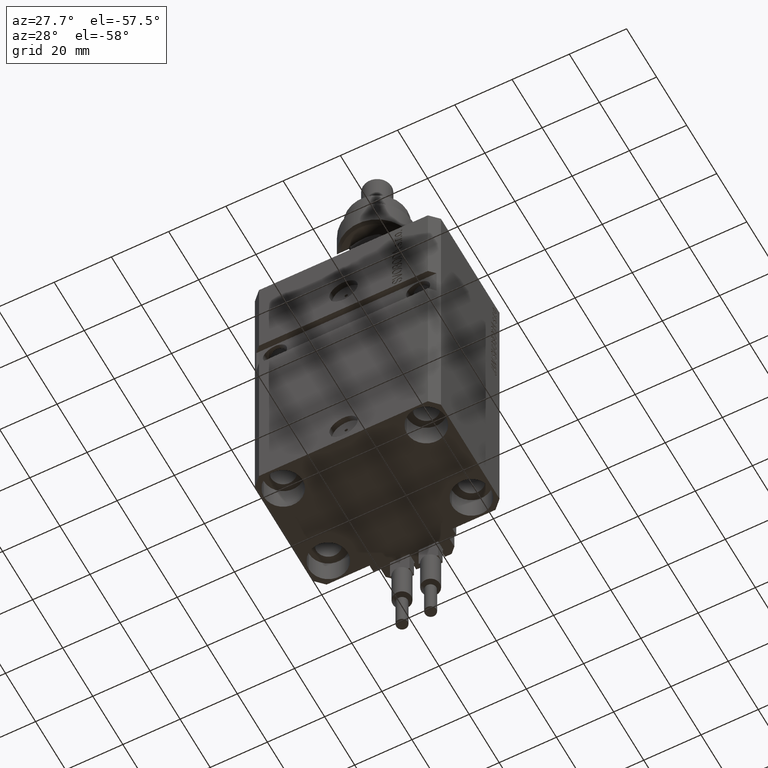
[diagram: clean part render]
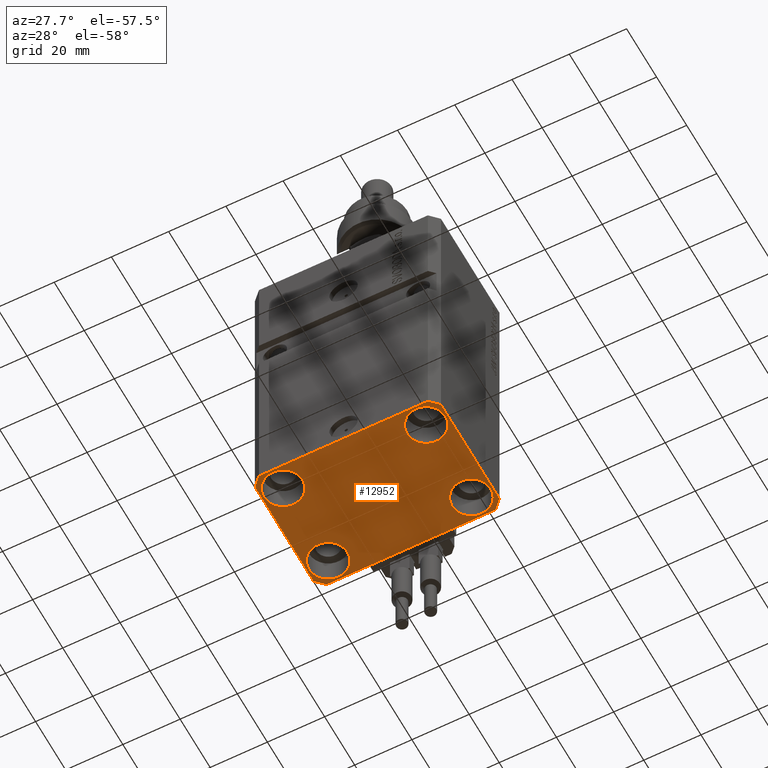
[diagram: same view with one face highlighted and labeled with its STEP entity id]
A machine part, auxiliary view. The second image highlights one B-rep face of the part: STEP entity #12952.
In plain terms, the highlighted planar face has unit normal (0, 0, 1).
Its self-contained STEP definition (entity closure, byte-faithful):
#37 = CIRCLE ( 'NONE', #19725, 6.749999999958452790 ) ;
#80 = VERTEX_POINT ( 'NONE', #34087 ) ;
#184 = DIRECTION ( 'NONE',  ( 1.000000000000000000, 0.000000000000000000, 0.000000000000000000 ) ) ;
#570 = CARTESIAN_POINT ( 'NONE',  ( 18.25000000004154543, 15.00000000000000888, -107.0000000000000000 ) ) ;
#759 = AXIS2_PLACEMENT_3D ( 'NONE', #5751, #48397, #16548 ) ;
#971 = ORIENTED_EDGE ( 'NONE', *, *, #12123, .F. ) ;
#1001 = VERTEX_POINT ( 'NONE', #32101 ) ;
#1067 = VERTEX_POINT ( 'NONE', #30247 ) ;
#1440 = ORIENTED_EDGE ( 'NONE', *, *, #33199, .F. ) ;
#1677 = VERTEX_POINT ( 'NONE', #50659 ) ;
#2952 = CARTESIAN_POINT ( 'NONE',  ( -32.49999999999650413, 19.49999999999949907, -107.0000000000000000 ) ) ;
#3204 = ORIENTED_EDGE ( 'NONE', *, *, #39499, .T. ) ;
#3311 = CARTESIAN_POINT ( 'NONE',  ( 29.49999999999650413, -22.49999999999949196, -107.0000000000000000 ) ) ;
#3581 = CARTESIAN_POINT ( 'NONE',  ( -25.00000000000000355, -15.00000000000000000, -107.0000000000000000 ) ) ;
#4820 = ORIENTED_EDGE ( 'NONE', *, *, #18905, .F. ) ;
#5167 = LINE ( 'NONE', #13141, #14283 ) ;
#5708 = DIRECTION ( 'NONE',  ( 1.000000000000000000, 0.000000000000000000, 0.000000000000000000 ) ) ;
#5751 = CARTESIAN_POINT ( 'NONE',  ( 0.000000000000000000, 0.000000000000000000, -107.0000000000000000 ) ) ;
#7946 = VERTEX_POINT ( 'NONE', #47980 ) ;
#8746 = CARTESIAN_POINT ( 'NONE',  ( -25.00000000000000355, 15.00000000000000000, -107.0000000000000000 ) ) ;
#9396 = CARTESIAN_POINT ( 'NONE',  ( -32.49999999999650413, 19.49999999999949907, -107.0000000000000000 ) ) ;
#9482 = AXIS2_PLACEMENT_3D ( 'NONE', #11554, #31360, #12073 ) ;
#9933 = VERTEX_POINT ( 'NONE', #26378 ) ;
#9961 = CIRCLE ( 'NONE', #28879, 6.750000000041541881 ) ;
#10611 = CARTESIAN_POINT ( 'NONE',  ( 32.49999999999702993, 19.49999999999945999, -107.0000000000000000 ) ) ;
#10756 = DIRECTION ( 'NONE',  ( 0.7071067811865483499, 0.7071067811865466846, 0.000000000000000000 ) ) ;
#11211 = VERTEX_POINT ( 'NONE', #20127 ) ;
#11554 = CARTESIAN_POINT ( 'NONE',  ( 25.00000000000000355, -15.00000000000000000, -107.0000000000000000 ) ) ;
#11930 = AXIS2_PLACEMENT_3D ( 'NONE', #27879, #35836, #16547 ) ;
#12073 = DIRECTION ( 'NONE',  ( 1.000000000000000000, 0.000000000000000000, 0.000000000000000000 ) ) ;
#12093 = DIRECTION ( 'NONE',  ( 1.000000000000000000, 0.000000000000000000, 0.000000000000000000 ) ) ;
#12123 = EDGE_CURVE ( 'NONE', #7946, #1677, #24641, .T. ) ;
#12952 = ADVANCED_FACE ( 'NONE', ( #39940, #36087, #21169, #28379, #32234 ), #28125, .F. ) ;
#12983 = EDGE_LOOP ( 'NONE', ( #28687, #47561 ) ) ;
#13141 = CARTESIAN_POINT ( 'NONE',  ( -29.49999999999650413, -22.49999999999949907, -107.0000000000000000 ) ) ;
#13417 = AXIS2_PLACEMENT_3D ( 'NONE', #8746, #28551, #12093 ) ;
#13888 = ORIENTED_EDGE ( 'NONE', *, *, #29912, .T. ) ;
#13943 = EDGE_CURVE ( 'NONE', #80, #14635, #16556, .T. ) ;
#14212 = VERTEX_POINT ( 'NONE', #38603 ) ;
#14283 = VECTOR ( 'NONE', #20598, 1000.000000000000000 ) ;
#14635 = VERTEX_POINT ( 'NONE', #9396 ) ;
#15644 = ORIENTED_EDGE ( 'NONE', *, *, #20658, .F. ) ;
#15950 = DIRECTION ( 'NONE',  ( -0.7071067811865352493, 0.7071067811865597852, 0.000000000000000000 ) ) ;
#16547 = DIRECTION ( 'NONE',  ( 1.000000000000000000, 0.000000000000000000, 0.000000000000000000 ) ) ;
#16548 = DIRECTION ( 'NONE',  ( 1.000000000000000000, 0.000000000000000000, -0.000000000000000000 ) ) ;
#16556 = LINE ( 'NONE', #25047, #18852 ) ;
#18138 = EDGE_LOOP ( 'NONE', ( #3204, #32679 ) ) ;
#18852 = VECTOR ( 'NONE', #29162, 1000.000000000000114 ) ;
#18905 = EDGE_CURVE ( 'NONE', #14635, #7946, #38412, .T. ) ;
#19725 = AXIS2_PLACEMENT_3D ( 'NONE', #32288, #47940, #184 ) ;
#20127 = CARTESIAN_POINT ( 'NONE',  ( 18.25000000002253842, -15.00000000000000000, -107.0000000000000000 ) ) ;
#20598 = DIRECTION ( 'NONE',  ( 1.000000000000000000, 1.176083712526788232E-16, 0.000000000000000000 ) ) ;
#20658 = EDGE_CURVE ( 'NONE', #1001, #9933, #34411, .T. ) ;
#21169 = FACE_BOUND ( 'NONE', #12983, .T. ) ;
#21178 = EDGE_CURVE ( 'NONE', #50551, #39740, #37, .T. ) ;
#22089 = EDGE_CURVE ( 'NONE', #39740, #50551, #42713, .T. ) ;
#23360 = ORIENTED_EDGE ( 'NONE', *, *, #46494, .F. ) ;
#23821 = CARTESIAN_POINT ( 'NONE',  ( 24.99999999999999645, 15.00000000000000888, -107.0000000000000000 ) ) ;
#24089 = CIRCLE ( 'NONE', #13417, 6.750000000022533087 ) ;
#24198 = EDGE_CURVE ( 'NONE', #41298, #43721, #9961, .T. ) ;
#24641 = LINE ( 'NONE', #28508, #39310 ) ;
#24810 = EDGE_LOOP ( 'NONE', ( #37677, #32864, #23360, #15644, #1440, #971, #4820, #35441 ) ) ;
#24819 = VERTEX_POINT ( 'NONE', #10611 ) ;
#25047 = CARTESIAN_POINT ( 'NONE',  ( -29.49999999999650413, 22.49999999999949907, -107.0000000000000000 ) ) ;
#25144 = VERTEX_POINT ( 'NONE', #31892 ) ;
#25411 = ORIENTED_EDGE ( 'NONE', *, *, #24198, .T. ) ;
#25977 = LINE ( 'NONE', #33435, #44766 ) ;
#26378 = CARTESIAN_POINT ( 'NONE',  ( 32.49999999999651124, -19.49999999999949196, -107.0000000000000000 ) ) ;
#26480 = DIRECTION ( 'NONE',  ( 1.000000000000000000, 0.000000000000000000, 0.000000000000000000 ) ) ;
#27153 = VERTEX_POINT ( 'NONE', #41726 ) ;
#27786 = CARTESIAN_POINT ( 'NONE',  ( 32.49999999999702993, 19.49999999999945999, -107.0000000000000000 ) ) ;
#27879 = CARTESIAN_POINT ( 'NONE',  ( 25.00000000000000355, -15.00000000000000000, -107.0000000000000000 ) ) ;
#27940 = CARTESIAN_POINT ( 'NONE',  ( -31.75000000004154899, -15.00000000000000000, -107.0000000000000000 ) ) ;
#28125 = PLANE ( 'NONE',  #759 ) ;
#28379 = FACE_BOUND ( 'NONE', #42797, .T. ) ;
#28508 = CARTESIAN_POINT ( 'NONE',  ( -32.49999999999650413, -19.49999999999949907, -107.0000000000000000 ) ) ;
#28551 = DIRECTION ( 'NONE',  ( -0.000000000000000000, -0.000000000000000000, 1.000000000000000000 ) ) ;
#28687 = ORIENTED_EDGE ( 'NONE', *, *, #22089, .T. ) ;
#28805 = CARTESIAN_POINT ( 'NONE',  ( -18.24999999995845812, -15.00000000000000000, -107.0000000000000000 ) ) ;
#28879 = AXIS2_PLACEMENT_3D ( 'NONE', #3581, #30086, #26480 ) ;
#29162 = DIRECTION ( 'NONE',  ( -0.7071067811865474617, -0.7071067811865474617, 0.000000000000000000 ) ) ;
#29269 = DIRECTION ( 'NONE',  ( 0.7071067811865474617, -0.7071067811865474617, 0.000000000000000000 ) ) ;
#29912 = EDGE_CURVE ( 'NONE', #27153, #14212, #41240, .T. ) ;
#30086 = DIRECTION ( 'NONE',  ( -0.000000000000000000, -0.000000000000000000, 1.000000000000000000 ) ) ;
#30247 = CARTESIAN_POINT ( 'NONE',  ( 29.49999999999707967, 22.49999999999951328, -107.0000000000000000 ) ) ;
#30819 = CIRCLE ( 'NONE', #11930, 6.749999999977465137 ) ;
#31177 = EDGE_CURVE ( 'NONE', #14212, #27153, #24089, .T. ) ;
#31231 = EDGE_CURVE ( 'NONE', #24819, #1067, #48055, .T. ) ;
#31360 = DIRECTION ( 'NONE',  ( -0.000000000000000000, -0.000000000000000000, 1.000000000000000000 ) ) ;
#31892 = CARTESIAN_POINT ( 'NONE',  ( 31.74999999997746869, -15.00000000000000000, -107.0000000000000000 ) ) ;
#32101 = CARTESIAN_POINT ( 'NONE',  ( 29.49999999999650413, -22.49999999999949196, -107.0000000000000000 ) ) ;
#32234 = FACE_OUTER_BOUND ( 'NONE', #24810, .T. ) ;
#32288 = CARTESIAN_POINT ( 'NONE',  ( 24.99999999999999645, 15.00000000000000888, -107.0000000000000000 ) ) ;
#32679 = ORIENTED_EDGE ( 'NONE', *, *, #36340, .T. ) ;
#32864 = ORIENTED_EDGE ( 'NONE', *, *, #31231, .F. ) ;
#32889 = DIRECTION ( 'NONE',  ( 1.334402673828349134E-14, 1.000000000000000000, 0.000000000000000000 ) ) ;
#33199 = EDGE_CURVE ( 'NONE', #1677, #1001, #5167, .T. ) ;
#33215 = DIRECTION ( 'NONE',  ( -0.000000000000000000, -0.000000000000000000, 1.000000000000000000 ) ) ;
#33289 = EDGE_LOOP ( 'NONE', ( #39355, #25411 ) ) ;
#33435 = CARTESIAN_POINT ( 'NONE',  ( 29.49999999999707967, 22.49999999999951328, -107.0000000000000000 ) ) ;
#34087 = CARTESIAN_POINT ( 'NONE',  ( -29.49999999999650413, 22.49999999999949907, -107.0000000000000000 ) ) ;
#34303 = AXIS2_PLACEMENT_3D ( 'NONE', #37302, #44244, #5708 ) ;
#34411 = LINE ( 'NONE', #3311, #46458 ) ;
#34542 = AXIS2_PLACEMENT_3D ( 'NONE', #23821, #36657, #47953 ) ;
#35441 = ORIENTED_EDGE ( 'NONE', *, *, #13943, .F. ) ;
#35836 = DIRECTION ( 'NONE',  ( -0.000000000000000000, -0.000000000000000000, 1.000000000000000000 ) ) ;
#36087 = FACE_BOUND ( 'NONE', #18138, .T. ) ;
#36340 = EDGE_CURVE ( 'NONE', #25144, #11211, #48065, .T. ) ;
#36344 = AXIS2_PLACEMENT_3D ( 'NONE', #49125, #33215, #40657 ) ;
#36657 = DIRECTION ( 'NONE',  ( -0.000000000000000000, -0.000000000000000000, 1.000000000000000000 ) ) ;
#37302 = CARTESIAN_POINT ( 'NONE',  ( -25.00000000000000355, -15.00000000000000000, -107.0000000000000000 ) ) ;
#37677 = ORIENTED_EDGE ( 'NONE', *, *, #39055, .F. ) ;
#38412 = LINE ( 'NONE', #2952, #45156 ) ;
#38440 = VECTOR ( 'NONE', #32889, 1000.000000000000000 ) ;
#38603 = CARTESIAN_POINT ( 'NONE',  ( -31.75000000002253842, 15.00000000000000000, -107.0000000000000000 ) ) ;
#39055 = EDGE_CURVE ( 'NONE', #1067, #80, #25977, .T. ) ;
#39310 = VECTOR ( 'NONE', #29269, 1000.000000000000114 ) ;
#39355 = ORIENTED_EDGE ( 'NONE', *, *, #45233, .T. ) ;
#39499 = EDGE_CURVE ( 'NONE', #11211, #25144, #30819, .T. ) ;
#39740 = VERTEX_POINT ( 'NONE', #570 ) ;
#39940 = FACE_BOUND ( 'NONE', #33289, .T. ) ;
#39992 = CARTESIAN_POINT ( 'NONE',  ( 31.74999999995845101, 15.00000000000000888, -107.0000000000000000 ) ) ;
#40080 = CARTESIAN_POINT ( 'NONE',  ( 32.49999999999651124, -19.49999999999949196, -107.0000000000000000 ) ) ;
#40657 = DIRECTION ( 'NONE',  ( 1.000000000000000000, 0.000000000000000000, 0.000000000000000000 ) ) ;
#41240 = CIRCLE ( 'NONE', #36344, 6.750000000022533087 ) ;
#41298 = VERTEX_POINT ( 'NONE', #28805 ) ;
#41726 = CARTESIAN_POINT ( 'NONE',  ( -18.24999999997747224, 15.00000000000000000, -107.0000000000000000 ) ) ;
#42713 = CIRCLE ( 'NONE', #34542, 6.749999999958452790 ) ;
#42797 = EDGE_LOOP ( 'NONE', ( #43388, #13888 ) ) ;
#43388 = ORIENTED_EDGE ( 'NONE', *, *, #31177, .T. ) ;
#43721 = VERTEX_POINT ( 'NONE', #27940 ) ;
#44244 = DIRECTION ( 'NONE',  ( -0.000000000000000000, -0.000000000000000000, 1.000000000000000000 ) ) ;
#44766 = VECTOR ( 'NONE', #49333, 1000.000000000000000 ) ;
#45156 = VECTOR ( 'NONE', #49958, 1000.000000000000000 ) ;
#45233 = EDGE_CURVE ( 'NONE', #43721, #41298, #46615, .T. ) ;
#45374 = VECTOR ( 'NONE', #15950, 1000.000000000000000 ) ;
#46458 = VECTOR ( 'NONE', #10756, 1000.000000000000000 ) ;
#46494 = EDGE_CURVE ( 'NONE', #9933, #24819, #48545, .T. ) ;
#46615 = CIRCLE ( 'NONE', #34303, 6.750000000041541881 ) ;
#47561 = ORIENTED_EDGE ( 'NONE', *, *, #21178, .T. ) ;
#47940 = DIRECTION ( 'NONE',  ( -0.000000000000000000, -0.000000000000000000, 1.000000000000000000 ) ) ;
#47953 = DIRECTION ( 'NONE',  ( 1.000000000000000000, 0.000000000000000000, 0.000000000000000000 ) ) ;
#47980 = CARTESIAN_POINT ( 'NONE',  ( -32.49999999999650413, -19.49999999999949907, -107.0000000000000000 ) ) ;
#48055 = LINE ( 'NONE', #27786, #45374 ) ;
#48065 = CIRCLE ( 'NONE', #9482, 6.749999999977465137 ) ;
#48397 = DIRECTION ( 'NONE',  ( 0.000000000000000000, 0.000000000000000000, 1.000000000000000000 ) ) ;
#48545 = LINE ( 'NONE', #40080, #38440 ) ;
#49125 = CARTESIAN_POINT ( 'NONE',  ( -25.00000000000000355, 15.00000000000000000, -107.0000000000000000 ) ) ;
#49333 = DIRECTION ( 'NONE',  ( -1.000000000000000000, -2.352167425053553784E-16, 0.000000000000000000 ) ) ;
#49958 = DIRECTION ( 'NONE',  ( 0.000000000000000000, -1.000000000000000000, 0.000000000000000000 ) ) ;
#50551 = VERTEX_POINT ( 'NONE', #39992 ) ;
#50659 = CARTESIAN_POINT ( 'NONE',  ( -29.49999999999650413, -22.49999999999949907, -107.0000000000000000 ) ) ;